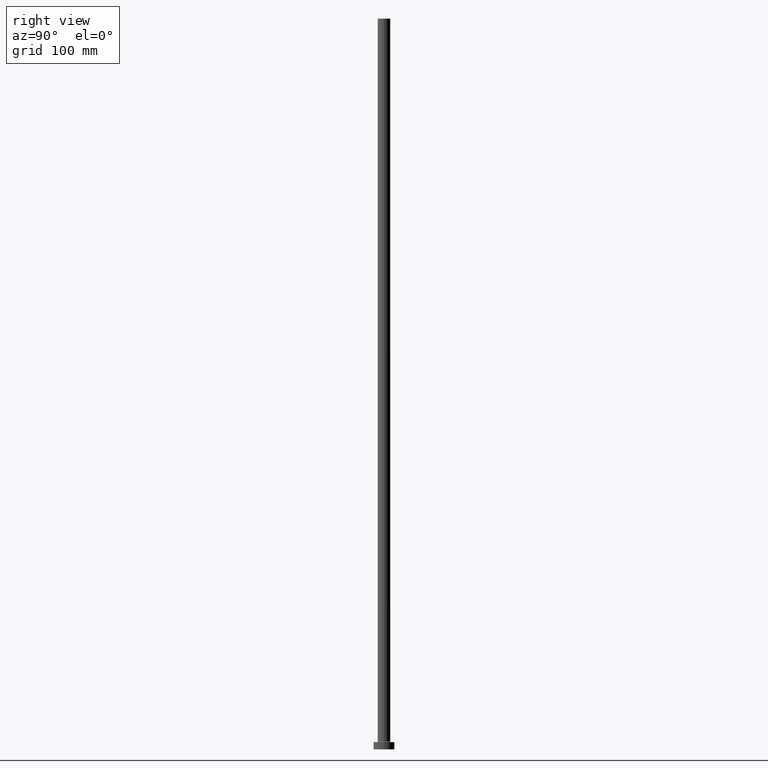
[diagram: clean part render]
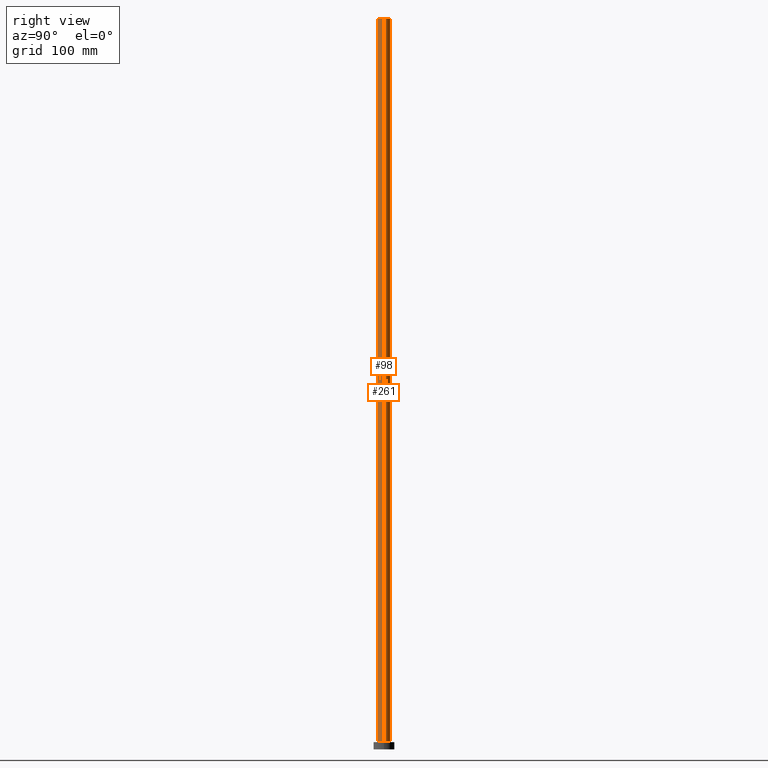
[diagram: same view with one multi-face feature highlighted, each face labeled with its STEP entity id]
A machine part, right view. The highlighted faces form ONE feature: a constant-radius fillet chain: 2 tangent blend faces with common blend radius 6 mm. The faces share edges in the B-rep.
Their STEP definitions:
[1] entity #261 (Cylinder):
#3 = FACE_OUTER_BOUND ( 'NONE', #113, .T. ) ;
#9 = CARTESIAN_POINT ( 'NONE',  ( 6.000000000000000888, 7.347880794884120722E-16, 7.700000000000040146 ) ) ;
#30 = VECTOR ( 'NONE', #300, 1000.000000000000000 ) ;
#49 = DIRECTION ( 'NONE',  ( 0.000000000000000000, 0.000000000000000000, 1.000000000000000000 ) ) ;
#59 = DIRECTION ( 'NONE',  ( -0.000000000000000000, -0.000000000000000000, -1.000000000000000000 ) ) ;
#79 = CARTESIAN_POINT ( 'NONE',  ( -6.000000000000000888, 0.000000000000000000, 700.0000000000000000 ) ) ;
#81 = CARTESIAN_POINT ( 'NONE',  ( -6.000000000000000888, 0.000000000000000000, 700.0000000000000000 ) ) ;
#82 = AXIS2_PLACEMENT_3D ( 'NONE', #86, #49, #192 ) ;
#85 = VERTEX_POINT ( 'NONE', #81 ) ;
#86 = CARTESIAN_POINT ( 'NONE',  ( 0.000000000000000000, 0.000000000000000000, 700.0000000000000000 ) ) ;
#93 = ORIENTED_EDGE ( 'NONE', *, *, #287, .T. ) ;
#99 = CIRCLE ( 'NONE', #82, 6.000000000000000888 ) ;
#103 = CARTESIAN_POINT ( 'NONE',  ( -6.000000000000000888, 0.000000000000000000, 7.700000000000040146 ) ) ;
#112 = EDGE_CURVE ( 'NONE', #210, #456, #324, .T. ) ;
#113 = EDGE_LOOP ( 'NONE', ( #142, #93, #446, #283 ) ) ;
#117 = CARTESIAN_POINT ( 'NONE',  ( 6.000000000000000888, 7.347880794884120722E-16, 700.0000000000000000 ) ) ;
#135 = AXIS2_PLACEMENT_3D ( 'NONE', #450, #59, #407 ) ;
#142 = ORIENTED_EDGE ( 'NONE', *, *, #205, .F. ) ;
#160 = CARTESIAN_POINT ( 'NONE',  ( 6.000000000000000888, 7.347880794884120722E-16, 700.0000000000000000 ) ) ;
#192 = DIRECTION ( 'NONE',  ( 1.000000000000000000, 0.000000000000000000, 0.000000000000000000 ) ) ;
#195 = LINE ( 'NONE', #117, #214 ) ;
#205 = EDGE_CURVE ( 'NONE', #426, #85, #99, .T. ) ;
#210 = VERTEX_POINT ( 'NONE', #9 ) ;
#211 = AXIS2_PLACEMENT_3D ( 'NONE', #225, #372, #405 ) ;
#214 = VECTOR ( 'NONE', #447, 1000.000000000000000 ) ;
#225 = CARTESIAN_POINT ( 'NONE',  ( 0.000000000000000000, 0.000000000000000000, 7.700000000000040146 ) ) ;
#243 = CYLINDRICAL_SURFACE ( 'NONE', #135, 6.000000000000000888 ) ;
#259 = LINE ( 'NONE', #79, #30 ) ;
#261 = ADVANCED_FACE ( 'NONE', ( #3 ), #243, .T. ) ;
#283 = ORIENTED_EDGE ( 'NONE', *, *, #316, .F. ) ;
#287 = EDGE_CURVE ( 'NONE', #426, #210, #195, .T. ) ;
#300 = DIRECTION ( 'NONE',  ( -0.000000000000000000, -0.000000000000000000, -1.000000000000000000 ) ) ;
#316 = EDGE_CURVE ( 'NONE', #85, #456, #259, .T. ) ;
#324 = CIRCLE ( 'NONE', #211, 6.000000000000000888 ) ;
#372 = DIRECTION ( 'NONE',  ( 0.000000000000000000, 0.000000000000000000, 1.000000000000000000 ) ) ;
#405 = DIRECTION ( 'NONE',  ( 1.000000000000000000, 0.000000000000000000, 0.000000000000000000 ) ) ;
#407 = DIRECTION ( 'NONE',  ( -1.000000000000000000, 0.000000000000000000, 0.000000000000000000 ) ) ;
#426 = VERTEX_POINT ( 'NONE', #160 ) ;
#446 = ORIENTED_EDGE ( 'NONE', *, *, #112, .T. ) ;
#447 = DIRECTION ( 'NONE',  ( -0.000000000000000000, -0.000000000000000000, -1.000000000000000000 ) ) ;
#450 = CARTESIAN_POINT ( 'NONE',  ( 0.000000000000000000, 0.000000000000000000, 700.0000000000000000 ) ) ;
#456 = VERTEX_POINT ( 'NONE', #103 ) ;
[2] entity #98 (Cylinder):
#7 = FACE_OUTER_BOUND ( 'NONE', #260, .T. ) ;
#9 = CARTESIAN_POINT ( 'NONE',  ( 6.000000000000000888, 7.347880794884120722E-16, 7.700000000000040146 ) ) ;
#18 = DIRECTION ( 'NONE',  ( 0.000000000000000000, 0.000000000000000000, 1.000000000000000000 ) ) ;
#30 = VECTOR ( 'NONE', #300, 1000.000000000000000 ) ;
#56 = CIRCLE ( 'NONE', #118, 6.000000000000000888 ) ;
#67 = DIRECTION ( 'NONE',  ( 1.000000000000000000, 0.000000000000000000, 0.000000000000000000 ) ) ;
#79 = CARTESIAN_POINT ( 'NONE',  ( -6.000000000000000888, 0.000000000000000000, 700.0000000000000000 ) ) ;
#81 = CARTESIAN_POINT ( 'NONE',  ( -6.000000000000000888, 0.000000000000000000, 700.0000000000000000 ) ) ;
#85 = VERTEX_POINT ( 'NONE', #81 ) ;
#98 = ADVANCED_FACE ( 'NONE', ( #7 ), #223, .T. ) ;
#103 = CARTESIAN_POINT ( 'NONE',  ( -6.000000000000000888, 0.000000000000000000, 7.700000000000040146 ) ) ;
#117 = CARTESIAN_POINT ( 'NONE',  ( 6.000000000000000888, 7.347880794884120722E-16, 700.0000000000000000 ) ) ;
#118 = AXIS2_PLACEMENT_3D ( 'NONE', #340, #18, #246 ) ;
#147 = CARTESIAN_POINT ( 'NONE',  ( 0.000000000000000000, 0.000000000000000000, 700.0000000000000000 ) ) ;
#149 = EDGE_CURVE ( 'NONE', #85, #426, #202, .T. ) ;
#160 = CARTESIAN_POINT ( 'NONE',  ( 6.000000000000000888, 7.347880794884120722E-16, 700.0000000000000000 ) ) ;
#175 = CARTESIAN_POINT ( 'NONE',  ( 0.000000000000000000, 0.000000000000000000, 700.0000000000000000 ) ) ;
#181 = ORIENTED_EDGE ( 'NONE', *, *, #287, .F. ) ;
#185 = ORIENTED_EDGE ( 'NONE', *, *, #316, .T. ) ;
#195 = LINE ( 'NONE', #117, #214 ) ;
#202 = CIRCLE ( 'NONE', #277, 6.000000000000000888 ) ;
#210 = VERTEX_POINT ( 'NONE', #9 ) ;
#214 = VECTOR ( 'NONE', #447, 1000.000000000000000 ) ;
#223 = CYLINDRICAL_SURFACE ( 'NONE', #266, 6.000000000000000888 ) ;
#246 = DIRECTION ( 'NONE',  ( 1.000000000000000000, 0.000000000000000000, 0.000000000000000000 ) ) ;
#259 = LINE ( 'NONE', #79, #30 ) ;
#260 = EDGE_LOOP ( 'NONE', ( #181, #437, #185, #357 ) ) ;
#266 = AXIS2_PLACEMENT_3D ( 'NONE', #147, #335, #439 ) ;
#277 = AXIS2_PLACEMENT_3D ( 'NONE', #175, #317, #67 ) ;
#287 = EDGE_CURVE ( 'NONE', #426, #210, #195, .T. ) ;
#300 = DIRECTION ( 'NONE',  ( -0.000000000000000000, -0.000000000000000000, -1.000000000000000000 ) ) ;
#316 = EDGE_CURVE ( 'NONE', #85, #456, #259, .T. ) ;
#317 = DIRECTION ( 'NONE',  ( 0.000000000000000000, 0.000000000000000000, 1.000000000000000000 ) ) ;
#335 = DIRECTION ( 'NONE',  ( -0.000000000000000000, -0.000000000000000000, -1.000000000000000000 ) ) ;
#340 = CARTESIAN_POINT ( 'NONE',  ( 0.000000000000000000, 0.000000000000000000, 7.700000000000040146 ) ) ;
#357 = ORIENTED_EDGE ( 'NONE', *, *, #445, .T. ) ;
#426 = VERTEX_POINT ( 'NONE', #160 ) ;
#437 = ORIENTED_EDGE ( 'NONE', *, *, #149, .F. ) ;
#439 = DIRECTION ( 'NONE',  ( -1.000000000000000000, 0.000000000000000000, 0.000000000000000000 ) ) ;
#445 = EDGE_CURVE ( 'NONE', #456, #210, #56, .T. ) ;
#447 = DIRECTION ( 'NONE',  ( -0.000000000000000000, -0.000000000000000000, -1.000000000000000000 ) ) ;
#456 = VERTEX_POINT ( 'NONE', #103 ) ;